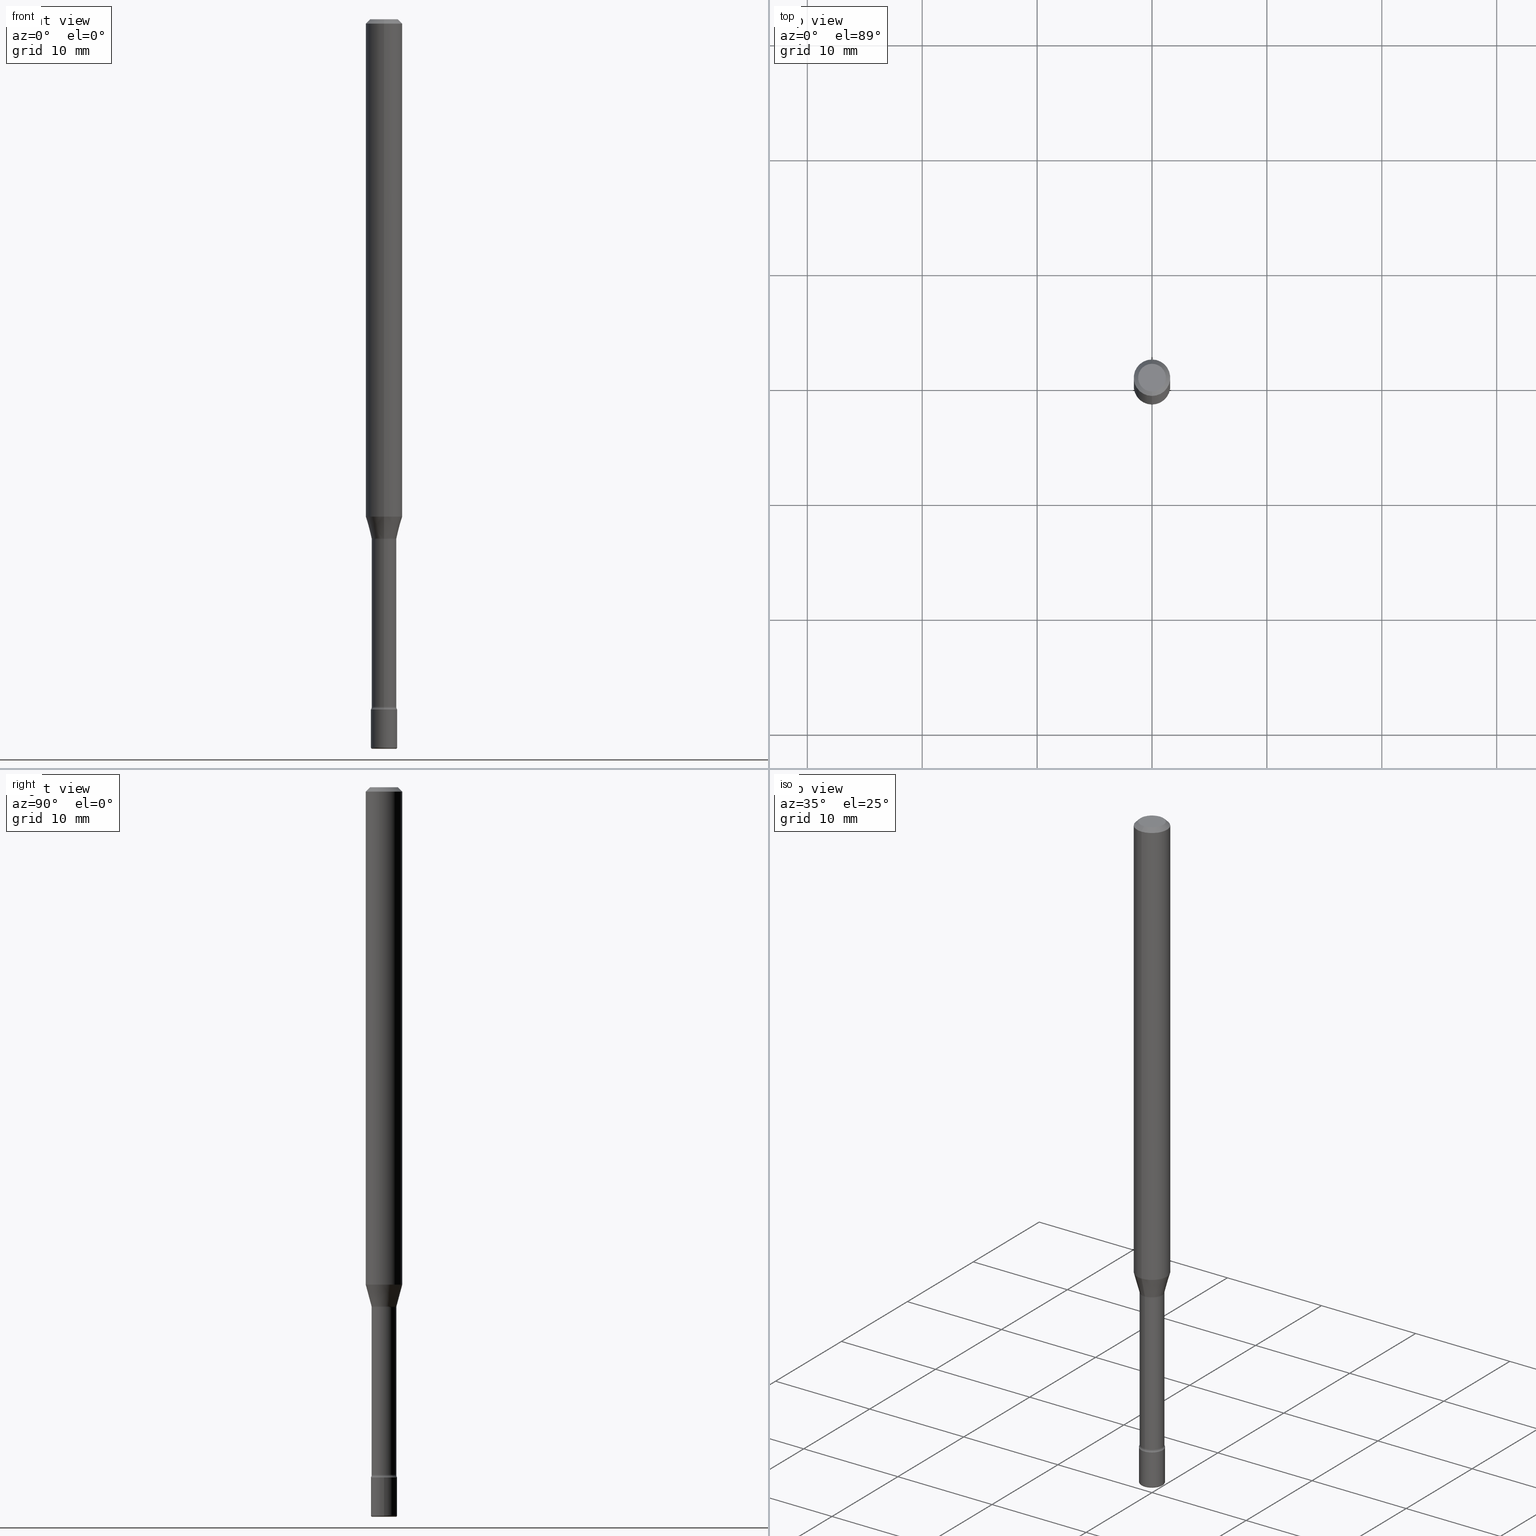
[diagram: canonical four-view strip — front | top / right | iso, engineering-drawing reading convention]
A machine part, canonical four-view strip (front | top / right | iso — engineering-drawing reading convention). The complete STEP part file that produces these views, byte-faithful:
ISO-10303-21;
HEADER;
FILE_DESCRIPTION (( 'STEP AP203' ),
    '1' );
FILE_NAME ('08849.STEP',
    '2024-03-06T20:05:38',
    ( '' ),
    ( '' ),
    'SwSTEP 2.0',
    'SolidWorks 2023',
    '' );
FILE_SCHEMA (( 'CONFIG_CONTROL_DESIGN' ));
ENDSEC;

DATA;
#1 = DIRECTION ( 'NONE',  ( -6.982962677686266711E-15, -1.000000000000000000, 3.491562882129241049E-15 ) ) ;
#2 = ORIENTED_EDGE ( 'NONE', *, *, #366, .T. ) ;
#3 = PLANE ( 'NONE',  #228 ) ;
#4 = ORIENTED_EDGE ( 'NONE', *, *, #376, .F. ) ;
#5 = CARTESIAN_POINT ( 'NONE',  ( 4.357763756151139053E-29, -6.221731716718877342E-15, -1.781974787463811216 ) ) ;
#6 = DIRECTION ( 'NONE',  ( -2.445411864812793917E-29, 3.491562882129241838E-15, 1.000000000000000000 ) ) ;
#7 = AXIS2_PLACEMENT_3D ( 'NONE', #543, #314, #186 ) ;
#8 = CARTESIAN_POINT ( 'NONE',  ( 4.364351673553919652E-16, 0.06249999999999995143, -0.01500000000000024578 ) ) ;
#9 = ORIENTED_EDGE ( 'NONE', *, *, #33, .F. ) ;
#10 = ADVANCED_FACE ( 'NONE', ( #183 ), #309, .F. ) ;
#11 = CARTESIAN_POINT ( 'NONE',  ( 5.783533726627847872E-29, -8.257353366364040046E-15, -2.365000000000000213 ) ) ;
#12 = CARTESIAN_POINT ( 'NONE',  ( 4.168479812603529288E-29, -5.951761990696706903E-15, -1.704612573687108945 ) ) ;
#13 = DIRECTION ( 'NONE',  ( 2.445411864812793917E-29, -3.491562882129241838E-15, -1.000000000000000000 ) ) ;
#14 = DIRECTION ( 'NONE',  ( -2.445411864812793917E-29, 3.491562882129241838E-15, 1.000000000000000000 ) ) ;
#15 = EDGE_CURVE ( 'NONE', #215, #368, #453, .T. ) ;
#16 = AXIS2_PLACEMENT_3D ( 'NONE', #35, #116, #384 ) ;
#17 = AXIS2_PLACEMENT_3D ( 'NONE', #130, #395, #134 ) ;
#18 = DATE_AND_TIME ( #383, #402 ) ;
#19 = DIRECTION ( 'NONE',  ( 1.000000000000000000, -6.982962677686266711E-15, 4.876176775795935793E-29 ) ) ;
#20 = CARTESIAN_POINT ( 'NONE',  ( -1.169113584055446105E-44, 1.669184350826100908E-30, 4.780733988912460139E-16 ) ) ;
#21 = DIRECTION ( 'NONE',  ( 1.000000000000000000, -7.105427357601001070E-15, 4.926316507159325352E-29 ) ) ;
#22 = ORIENTED_EDGE ( 'NONE', *, *, #510, .F. ) ;
#23 = AXIS2_PLACEMENT_3D ( 'NONE', #340, #428, #211 ) ;
#24 = APPROVAL_ROLE ( '' ) ;
#25 = DIRECTION ( 'NONE',  ( -2.445411864812793917E-29, 3.491562882129241838E-15, 1.000000000000000000 ) ) ;
#26 = UNCERTAINTY_MEASURE_WITH_UNIT (LENGTH_MEASURE( 1.000000000000000082E-05 ), #152, 'distance_accuracy_value', 'NONE');
#27 = CARTESIAN_POINT ( 'NONE',  ( 0.04000000000000000083, -9.008021854215313402E-15, -2.499999999999999556 ) ) ;
#28 = DIRECTION ( 'NONE',  ( -2.445411864812793917E-29, 3.491562882129241838E-15, 1.000000000000000000 ) ) ;
#29 = CIRCLE ( 'NONE', #360, 0.01500000000000001853 ) ;
#30 = CARTESIAN_POINT ( 'NONE',  ( -2.989484015155321567E-16, -0.04281111260567019294, -1.778092501787273072 ) ) ;
#31 = AXIS2_PLACEMENT_3D ( 'NONE', #437, #398, #405 ) ;
#32 = ORIENTED_EDGE ( 'NONE', *, *, #406, .T. ) ;
#33 = EDGE_CURVE ( 'NONE', #393, #424, #68, .T. ) ;
#34 = PERSON_AND_ORGANIZATION_ROLE ( 'design_owner' ) ;
#35 = CARTESIAN_POINT ( 'NONE',  ( 4.348168500605261643E-29, -6.208321780232765587E-15, -1.778092501787273294 ) ) ;
#36 = ADVANCED_FACE ( 'NONE', ( #89 ), #236, .T. ) ;
#37 = EDGE_LOOP ( 'NONE', ( #418, #264, #296, #43 ) ) ;
#38 = EDGE_CURVE ( 'NONE', #386, #79, #473, .T. ) ;
#39 = DIRECTION ( 'NONE',  ( -2.445468806185136597E-29, 3.491481338843145583E-15, 1.000000000000000000 ) ) ;
#40 = ORIENTED_EDGE ( 'NONE', *, *, #376, .T. ) ;
#41 = FACE_OUTER_BOUND ( 'NONE', #331, .T. ) ;
#42 = CIRCLE ( 'NONE', #246, 0.01500000000000003587 ) ;
#43 = ORIENTED_EDGE ( 'NONE', *, *, #558, .F. ) ;
#44 = FACE_OUTER_BOUND ( 'NONE', #255, .T. ) ;
#45 = EDGE_LOOP ( 'NONE', ( #125, #258, #187, #399 ) ) ;
#46 = FACE_OUTER_BOUND ( 'NONE', #520, .T. ) ;
#47 = APPROVAL ( #146, 'UNSPECIFIED' ) ;
#48 = CARTESIAN_POINT ( 'NONE',  ( 5.783533726627847872E-29, -8.257353366364040046E-15, -2.365000000000000213 ) ) ;
#49 = DIRECTION ( 'NONE',  ( -2.445411864812793917E-29, 3.491562882129241838E-15, 1.000000000000000000 ) ) ;
#50 = CARTESIAN_POINT ( 'NONE',  ( 5.762538269587286723E-29, -8.227377418082795508E-15, -2.356414547187247521 ) ) ;
#51 = TOROIDAL_SURFACE ( 'NONE', #445, 0.05730000000000001065, 0.01500000000000003240 ) ;
#52 = DIRECTION ( 'NONE',  ( -6.982962677686265922E-15, -1.000000000000000000, 4.370956789862821150E-15 ) ) ;
#53 = DIRECTION ( 'NONE',  ( 1.839019923739595977E-15, 0.2588190451025243477, 0.9659258262890673130 ) ) ;
#54 = FACE_OUTER_BOUND ( 'NONE', #229, .T. ) ;
#55 = ORIENTED_EDGE ( 'NONE', *, *, #15, .T. ) ;
#56 = APPLICATION_PROTOCOL_DEFINITION ( 'international standard', 'config_control_design', 1994, #442 ) ;
#57 = ORIENTED_EDGE ( 'NONE', *, *, #87, .T. ) ;
#58 = AXIS2_PLACEMENT_3D ( 'NONE', #420, #78, #528 ) ;
#59 = EDGE_CURVE ( 'NONE', #79, #386, #288, .T. ) ;
#60 = PERSON_AND_ORGANIZATION ( #459, #311 ) ;
#61 = CARTESIAN_POINT ( 'NONE',  ( 3.005595772265800451E-16, 0.04229999999999378701, -1.781974787463811438 ) ) ;
#62 = ORIENTED_EDGE ( 'NONE', *, *, #366, .F. ) ;
#63 = DATE_AND_TIME ( #242, #426 ) ;
#64 = DIRECTION ( 'NONE',  ( -6.982962677686263555E-15, -1.000000000000000000, 0.000000000000000000 ) ) ;
#65 = DESIGN_CONTEXT ( 'detailed design', #505, 'design' ) ;
#66 = APPROVAL_DATE_TIME ( #63, #450 ) ;
#67 = DIRECTION ( 'NONE',  ( -2.445411864812793917E-29, 3.491562882129241838E-15, 1.000000000000000000 ) ) ;
#68 = CIRCLE ( 'NONE', #176, 0.04229999999999999732 ) ;
#69 = CIRCLE ( 'NONE', #318, 0.04500000000000000527 ) ;
#70 = CARTESIAN_POINT ( 'NONE',  ( -0.04000000000000000083, -8.427028846109608002E-15, -2.495000000000000107 ) ) ;
#71 = CC_DESIGN_PERSON_AND_ORGANIZATION_ASSIGNMENT ( #150, #457, ( #168 ) ) ;
#72 = CARTESIAN_POINT ( 'NONE',  ( -2.953793212660855675E-16, -0.04230000000000623539, -1.781974787463810994 ) ) ;
#73 = CYLINDRICAL_SURFACE ( 'NONE', #570, 0.04229999999999999732 ) ;
#74 = ORIENTED_EDGE ( 'NONE', *, *, #507, .F. ) ;
#75 = APPROVAL_STATUS ( 'not_yet_approved' ) ;
#76 = AXIS2_PLACEMENT_3D ( 'NONE', #512, #108, #192 ) ;
#77 = VECTOR ( 'NONE', #322, 39.37007874015748143 ) ;
#78 = DIRECTION ( 'NONE',  ( 2.445411864812793637E-29, -3.491562882129241838E-15, -1.000000000000000000 ) ) ;
#79 = VERTEX_POINT ( 'NONE', #137 ) ;
#80 = DIRECTION ( 'NONE',  ( -1.000000000000000000, 6.982962677686265922E-15, -4.883557194083112340E-29 ) ) ;
#81 = ORIENTED_EDGE ( 'NONE', *, *, #454, .T. ) ;
#82 = DIRECTION ( 'NONE',  ( -2.445468806185136597E-29, 3.491481338843145583E-15, 1.000000000000000000 ) ) ;
#83 = ORIENTED_EDGE ( 'NONE', *, *, #524, .T. ) ;
#84 = DIRECTION ( 'NONE',  ( -2.445468806185136877E-29, 3.491481338843145188E-15, 1.000000000000000000 ) ) ;
#85 = VECTOR ( 'NONE', #563, 39.37007874015748143 ) ;
#86 = ORIENTED_EDGE ( 'NONE', *, *, #109, .F. ) ;
#87 = EDGE_CURVE ( 'NONE', #117, #304, #495, .T. ) ;
#88 = CARTESIAN_POINT ( 'NONE',  ( 4.168479812603529288E-29, -5.951761990696706903E-15, -1.704612573687108945 ) ) ;
#89 = FACE_OUTER_BOUND ( 'NONE', #209, .T. ) ;
#90 = EDGE_LOOP ( 'NONE', ( #540, #180, #260, #397 ) ) ;
#91 = EDGE_CURVE ( 'NONE', #215, #304, #103, .T. ) ;
#92 = EDGE_CURVE ( 'NONE', #204, #224, #118, .T. ) ;
#93 = CARTESIAN_POINT ( 'NONE',  ( 4.357662288061261093E-29, -6.221877024798788192E-15, -1.781974787463811216 ) ) ;
#94 = CIRCLE ( 'NONE', #434, 0.004999999999999776325 ) ;
#95 = VERTEX_POINT ( 'NONE', #545 ) ;
#96 = CIRCLE ( 'NONE', #141, 0.06250000000000000000 ) ;
#97 = CARTESIAN_POINT ( 'NONE',  ( 3.840629472727447874E-16, 0.04750000000000000749, -1.929345507921889422E-16 ) ) ;
#98 = DIRECTION ( 'NONE',  ( -2.445468806185136597E-29, 3.491481338843145583E-15, 1.000000000000000000 ) ) ;
#99 = PERSON_AND_ORGANIZATION ( #459, #311 ) ;
#100 = ORIENTED_EDGE ( 'NONE', *, *, #558, .T. ) ;
#101 = COORDINATED_UNIVERSAL_TIME_OFFSET ( 5, 0, .BEHIND. ) ;
#102 = DIRECTION ( 'NONE',  ( -6.982962677686265922E-15, -1.000000000000000000, 3.483106191921935554E-15 ) ) ;
#103 = CIRCLE ( 'NONE', #271, 0.06250000000000000000 ) ;
#104 = AXIS2_PLACEMENT_3D ( 'NONE', #498, #21, #335 ) ;
#105 = VECTOR ( 'NONE', #303, 39.37007874015748854 ) ;
#106 = LOCAL_TIME ( 15, 5, 38.00000000000000000, #191 ) ;
#107 = FACE_OUTER_BOUND ( 'NONE', #37, .T. ) ;
#108 = DIRECTION ( 'NONE',  ( -2.445411864812793917E-29, 3.491562882129241838E-15, 1.000000000000000000 ) ) ;
#109 = EDGE_CURVE ( 'NONE', #173, #175, #129, .T. ) ;
#110 = DATE_AND_TIME ( #511, #262 ) ;
#111 = DIRECTION ( 'NONE',  ( -2.445468806185136597E-29, 3.491481338843145583E-15, 1.000000000000000000 ) ) ;
#112 = VECTOR ( 'NONE', #84, 39.37007874015748143 ) ;
#113 = DIRECTION ( 'NONE',  ( 1.000000000000000000, -6.982962677686259611E-15, 4.883557194083110659E-29 ) ) ;
#114 = FACE_OUTER_BOUND ( 'NONE', #483, .T. ) ;
#115 = ORIENTED_EDGE ( 'NONE', *, *, #206, .F. ) ;
#116 = DIRECTION ( 'NONE',  ( -2.445411864812793917E-29, 3.491562882129241838E-15, 1.000000000000000000 ) ) ;
#117 = VERTEX_POINT ( 'NONE', #280 ) ;
#118 = CIRCLE ( 'NONE', #217, 0.04000000000000000083 ) ;
#119 = AXIS2_PLACEMENT_3D ( 'NONE', #569, #203, #380 ) ;
#120 = APPROVAL_PERSON_ORGANIZATION ( #464, #396, #413 ) ;
#121 = CARTESIAN_POINT ( 'NONE',  ( -2.989484015155321567E-16, -0.04281111260567019294, -1.778092501787273072 ) ) ;
#122 = EDGE_CURVE ( 'NONE', #375, #368, #547, .T. ) ;
#123 = EDGE_LOOP ( 'NONE', ( #302, #128, #355, #471 ) ) ;
#124 = CARTESIAN_POINT ( 'NONE',  ( 4.440892098501044258E-16, 0.06249999999999408112, -1.704612573687109167 ) ) ;
#125 = ORIENTED_EDGE ( 'NONE', *, *, #91, .T. ) ;
#126 = ADVANCED_FACE ( 'NONE', ( #367 ), #414, .T. ) ;
#127 = DIRECTION ( 'NONE',  ( -6.982962677686265133E-15, -1.000000000000000000, 3.491562882129241838E-15 ) ) ;
#128 = ORIENTED_EDGE ( 'NONE', *, *, #196, .T. ) ;
#129 = CIRCLE ( 'NONE', #541, 0.04499999999999999833 ) ;
#130 = CARTESIAN_POINT ( 'NONE',  ( -1.169113584055446105E-44, 1.669184350826100908E-30, 4.780733988912460139E-16 ) ) ;
#131 = AXIS2_PLACEMENT_3D ( 'NONE', #509, #67, #245 ) ;
#132 = DIRECTION ( 'NONE',  ( -6.982962677686266711E-15, -1.000000000000000000, 6.458269488567998169E-15 ) ) ;
#133 = AXIS2_PLACEMENT_3D ( 'NONE', #93, #263, #231 ) ;
#134 = DIRECTION ( 'NONE',  ( -6.982962677686265922E-15, -1.000000000000000000, 3.491562882129242627E-15 ) ) ;
#135 = EDGE_LOOP ( 'NONE', ( #526, #341, #222, #202 ) ) ;
#136 = DIRECTION ( 'NONE',  ( -6.982962677686265922E-15, -1.000000000000000000, 3.491562882129241838E-15 ) ) ;
#137 = CARTESIAN_POINT ( 'NONE',  ( 0.04499999999999999833, -8.571586686859921733E-15, -2.365000000000000213 ) ) ;
#138 = MANIFOLD_SOLID_BREP ( 'Body-Move/Copy2[1]', #560 ) ;
#139 = CARTESIAN_POINT ( 'NONE',  ( -2.953793212661290535E-16, -0.04229999999999999732, 6.257665088053130012E-16 ) ) ;
#140 = ORIENTED_EDGE ( 'NONE', *, *, #109, .T. ) ;
#141 = AXIS2_PLACEMENT_3D ( 'NONE', #275, #182, #449 ) ;
#142 = FACE_OUTER_BOUND ( 'NONE', #213, .T. ) ;
#143 = CARTESIAN_POINT ( 'NONE',  ( 5.783399060282257641E-29, -8.257546216235657656E-15, -2.365000000000000213 ) ) ;
#144 = PERSON_AND_ORGANIZATION_ROLE ( 'design_supplier' ) ;
#145 = CARTESIAN_POINT ( 'NONE',  ( 5.783399060282257641E-29, -8.257546216235657656E-15, -2.365000000000000213 ) ) ;
#146 = APPROVAL_STATUS ( 'not_yet_approved' ) ;
#147 = AXIS2_PLACEMENT_3D ( 'NONE', #50, #6, #409 ) ;
#148 = ORIENTED_EDGE ( 'NONE', *, *, #356, .F. ) ;
#149 = CIRCLE ( 'NONE', #423, 0.04499999999999999833 ) ;
#150 = PERSON_AND_ORGANIZATION ( #459, #311 ) ;
#151 = CARTESIAN_POINT ( 'NONE',  ( 0.000000000000000000, 0.000000000000000000, 0.000000000000000000 ) ) ;
#152 =( CONVERSION_BASED_UNIT ( 'INCH', #277 ) LENGTH_UNIT ( ) NAMED_UNIT ( #269 ) );
#153 = DIRECTION ( 'NONE',  ( -1.000000000000000000, 6.982962677686265922E-15, -4.883557194083112340E-29 ) ) ;
#154 = ORIENTED_EDGE ( 'NONE', *, *, #38, .T. ) ;
#155 = EDGE_CURVE ( 'NONE', #393, #173, #455, .T. ) ;
#156 = CARTESIAN_POINT ( 'NONE',  ( 6.620752579593885833E-46, -9.460906030875025688E-32, -2.708531389104991304E-17 ) ) ;
#157 = CIRCLE ( 'NONE', #475, 0.04230000000000001120 ) ;
#158 = CC_DESIGN_PERSON_AND_ORGANIZATION_ASSIGNMENT ( #99, #34, ( #212 ) ) ;
#159 = CARTESIAN_POINT ( 'NONE',  ( -0.04499999999999999833, -8.164555422296798820E-15, -2.365000000000000213 ) ) ;
#160 = ORIENTED_EDGE ( 'NONE', *, *, #91, .F. ) ;
#161 = DIRECTION ( 'NONE',  ( -2.445411864812793917E-29, 3.491562882129241838E-15, 1.000000000000000000 ) ) ;
#162 = ORIENTED_EDGE ( 'NONE', *, *, #170, .F. ) ;
#163 = DIRECTION ( 'NONE',  ( 0.000000000000000000, 0.000000000000000000, 1.000000000000000000 ) ) ;
#164 = LINE ( 'NONE', #348, #379 ) ;
#165 = ORIENTED_EDGE ( 'NONE', *, *, #507, .T. ) ;
#166 = DATE_AND_TIME ( #332, #106 ) ;
#167 = CIRCLE ( 'NONE', #491, 0.04750000000000000749 ) ;
#168 = PRODUCT_DEFINITION_FORMATION_WITH_SPECIFIED_SOURCE ( 'ANY', '', #212, .NOT_KNOWN. ) ;
#169 = DIRECTION ( 'NONE',  ( -2.445411864812793917E-29, 3.491562882129241838E-15, 1.000000000000000000 ) ) ;
#170 = EDGE_CURVE ( 'NONE', #224, #478, #94, .T. ) ;
#171 = ORIENTED_EDGE ( 'NONE', *, *, #122, .T. ) ;
#172 = CYLINDRICAL_SURFACE ( 'NONE', #425, 0.04499999999999999833 ) ;
#173 = VERTEX_POINT ( 'NONE', #555 ) ;
#174 = DIRECTION ( 'NONE',  ( -2.445468806185136597E-29, 3.491481338843145583E-15, 1.000000000000000000 ) ) ;
#175 = VERTEX_POINT ( 'NONE', #287 ) ;
#176 = AXIS2_PLACEMENT_3D ( 'NONE', #351, #533, #132 ) ;
#177 = CONICAL_SURFACE ( 'NONE', #542, 0.04281111260566398957, 0.2617993877991496299 ) ;
#178 = LINE ( 'NONE', #139, #218 ) ;
#179 = CIRCLE ( 'NONE', #328, 0.06250000000000000000 ) ;
#180 = ORIENTED_EDGE ( 'NONE', *, *, #381, .F. ) ;
#181 = AXIS2_PLACEMENT_3D ( 'NONE', #11, #184, #221 ) ;
#182 = DIRECTION ( 'NONE',  ( -2.445411864812793917E-29, 3.491562882129241838E-15, 1.000000000000000000 ) ) ;
#183 = FACE_OUTER_BOUND ( 'NONE', #266, .T. ) ;
#184 = DIRECTION ( 'NONE',  ( -2.438088387897960049E-29, 3.491481338843145188E-15, 1.000000000000000000 ) ) ;
#185 = CARTESIAN_POINT ( 'NONE',  ( 3.041912507176654596E-16, 0.04281111260565777926, -1.778092501787273516 ) ) ;
#186 = DIRECTION ( 'NONE',  ( -6.982962677686265922E-15, -1.000000000000000000, 3.491562882129241838E-15 ) ) ;
#187 = ORIENTED_EDGE ( 'NONE', *, *, #441, .F. ) ;
#188 = FACE_OUTER_BOUND ( 'NONE', #564, .T. ) ;
#189 = DIRECTION ( 'NONE',  ( -4.851104656540962697E-15, -0.7071067811865497932, -0.7071067811865452413 ) ) ;
#190 = ADVANCED_FACE ( 'NONE', ( #549 ), #251, .T. ) ;
#191 = COORDINATED_UNIVERSAL_TIME_OFFSET ( 5, 0, .BEHIND. ) ;
#192 = DIRECTION ( 'NONE',  ( -6.982962677686265133E-15, -1.000000000000000000, 6.381165607227957288E-15 ) ) ;
#193 = AXIS2_PLACEMENT_3D ( 'NONE', #20, #199, #421 ) ;
#194 = VERTEX_POINT ( 'NONE', #72 ) ;
#195 = CIRCLE ( 'NONE', #272, 0.04500000000000000527 ) ;
#196 = EDGE_CURVE ( 'NONE', #117, #234, #500, .T. ) ;
#197 = APPROVAL_PERSON_ORGANIZATION ( #198, #450, #24 ) ;
#198 = PERSON_AND_ORGANIZATION ( #459, #311 ) ;
#199 = DIRECTION ( 'NONE',  ( -2.445411864812793917E-29, 3.491562882129241838E-15, 1.000000000000000000 ) ) ;
#200 = ADVANCED_FACE ( 'NONE', ( #107 ), #466, .T. ) ;
#201 = CARTESIAN_POINT ( 'NONE',  ( 6.101444671431915719E-29, -8.711245940413648329E-15, -2.495000000000000107 ) ) ;
#202 = ORIENTED_EDGE ( 'NONE', *, *, #373, .F. ) ;
#203 = DIRECTION ( 'NONE',  ( -2.445411864812793917E-29, 3.491562882129241838E-15, 1.000000000000000000 ) ) ;
#204 = VERTEX_POINT ( 'NONE', #27 ) ;
#205 = CIRCLE ( 'NONE', #435, 0.04750000000000000749 ) ;
#206 = EDGE_CURVE ( 'NONE', #175, #173, #149, .T. ) ;
#207 = CC_DESIGN_APPROVAL ( #450, ( #297 ) ) ;
#208 = CARTESIAN_POINT ( 'NONE',  ( 4.348168500605261643E-29, -6.208321780232765587E-15, -1.778092501787273294 ) ) ;
#209 = EDGE_LOOP ( 'NONE', ( #162, #2, #100, #232 ) ) ;
#210 = COORDINATED_UNIVERSAL_TIME_OFFSET ( 5, 0, .BEHIND. ) ;
#211 = DIRECTION ( 'NONE',  ( 6.982962677686265922E-15, 1.000000000000000000, -3.483106191921935554E-15 ) ) ;
#212 = PRODUCT ( '08849', '08849', '', ( #326 ) ) ;
#213 = EDGE_LOOP ( 'NONE', ( #571, #4, #359, #518 ) ) ;
#214 = CARTESIAN_POINT ( 'NONE',  ( 4.357763756151139053E-29, -6.221731716718877342E-15, -1.781974787463811216 ) ) ;
#215 = VERTEX_POINT ( 'NONE', #292 ) ;
#216 = EDGE_CURVE ( 'NONE', #95, #368, #345, .T. ) ;
#217 = AXIS2_PLACEMENT_3D ( 'NONE', #493, #98, #451 ) ;
#218 = VECTOR ( 'NONE', #49, 39.37007874015748143 ) ;
#219 = LINE ( 'NONE', #392, #85 ) ;
#220 = ORIENTED_EDGE ( 'NONE', *, *, #441, .T. ) ;
#221 = DIRECTION ( 'NONE',  ( 1.000000000000000000, -6.982962677686265922E-15, 4.876176775795935793E-29 ) ) ;
#222 = ORIENTED_EDGE ( 'NONE', *, *, #59, .F. ) ;
#223 = CYLINDRICAL_SURFACE ( 'NONE', #17, 0.06250000000000000000 ) ;
#224 = VERTEX_POINT ( 'NONE', #557 ) ;
#225 = AXIS2_PLACEMENT_3D ( 'NONE', #412, #536, #448 ) ;
#226 = EDGE_CURVE ( 'NONE', #375, #438, #205, .T. ) ;
#227 = CARTESIAN_POINT ( 'NONE',  ( -0.04499999999999989425, -8.391501709321603750E-15, -2.495000000000000107 ) ) ;
#228 = AXIS2_PLACEMENT_3D ( 'NONE', #484, #354, #439 ) ;
#229 = EDGE_LOOP ( 'NONE', ( #115, #86 ) ) ;
#230 = EDGE_CURVE ( 'NONE', #424, #175, #29, .T. ) ;
#231 = DIRECTION ( 'NONE',  ( -6.982962677686265133E-15, -1.000000000000000000, 6.458269488567996591E-15 ) ) ;
#232 = ORIENTED_EDGE ( 'NONE', *, *, #524, .F. ) ;
#233 = CARTESIAN_POINT ( 'NONE',  ( 4.348168500605261643E-29, -6.208321780232765587E-15, -1.778092501787273294 ) ) ;
#234 = VERTEX_POINT ( 'NONE', #61 ) ;
#235 = CALENDAR_DATE ( 2024, 6, 3 ) ;
#236 = TOROIDAL_SURFACE ( 'NONE', #225, 0.04000000000000000083, 0.004999999999999771988 ) ;
#237 = EDGE_LOOP ( 'NONE', ( #487, #171, #220, #550 ) ) ;
#238 = CIRCLE ( 'NONE', #525, 0.04000000000000000083 ) ;
#239 = DIRECTION ( 'NONE',  ( -6.982962677686265133E-15, -1.000000000000000000, 6.458269488567996591E-15 ) ) ;
#240 = EDGE_CURVE ( 'NONE', #194, #234, #157, .T. ) ;
#241 = ADVANCED_FACE ( 'NONE', ( #188 ), #469, .T. ) ;
#242 = CALENDAR_DATE ( 2024, 6, 3 ) ;
#243 = CARTESIAN_POINT ( 'NONE',  ( -4.287811248607203282E-16, -0.06250000000000005551, -0.01499999999999981036 ) ) ;
#244 = SECURITY_CLASSIFICATION_LEVEL ( 'unclassified' ) ;
#245 = DIRECTION ( 'NONE',  ( -6.982962677686265922E-15, -1.000000000000000000, 3.491562882129242627E-15 ) ) ;
#246 = AXIS2_PLACEMENT_3D ( 'NONE', #477, #80, #257 ) ;
#247 = DIRECTION ( 'NONE',  ( -2.445411864812793917E-29, 3.491562882129241838E-15, 1.000000000000000000 ) ) ;
#248 = DIRECTION ( 'NONE',  ( -6.982962677686265133E-15, -1.000000000000000000, 3.491562882129241838E-15 ) ) ;
#249 = CARTESIAN_POINT ( 'NONE',  ( 6.620752579593885833E-46, -9.460906030875025688E-32, -2.708531389104991304E-17 ) ) ;
#250 = ORIENTED_EDGE ( 'NONE', *, *, #494, .F. ) ;
#251 = CONICAL_SURFACE ( 'NONE', #76, 0.04281111260566398957, 0.2617993877991496299 ) ;
#252 = CIRCLE ( 'NONE', #501, 0.04281111260566398957 ) ;
#253 = PERSON_AND_ORGANIZATION ( #459, #311 ) ;
#254 = DIRECTION ( 'NONE',  ( -6.982962677686265922E-15, -1.000000000000000000, 3.491562882129241838E-15 ) ) ;
#255 = EDGE_LOOP ( 'NONE', ( #485, #154 ) ) ;
#256 = ADVANCED_FACE ( 'NONE', ( #465 ), #333, .T. ) ;
#257 = DIRECTION ( 'NONE',  ( -6.982962677686263555E-15, -1.000000000000000000, 0.000000000000000000 ) ) ;
#258 = ORIENTED_EDGE ( 'NONE', *, *, #510, .T. ) ;
#259 = DIRECTION ( 'NONE',  ( 1.000000000000000000, -6.982962677686266711E-15, 4.876176775795935793E-29 ) ) ;
#260 = ORIENTED_EDGE ( 'NONE', *, *, #230, .T. ) ;
#261 = CIRCLE ( 'NONE', #16, 0.04281111260566398957 ) ;
#262 = LOCAL_TIME ( 15, 5, 38.00000000000000000, #546 ) ;
#263 = DIRECTION ( 'NONE',  ( -2.445411864812793917E-29, 3.491562882129241838E-15, 1.000000000000000000 ) ) ;
#264 = ORIENTED_EDGE ( 'NONE', *, *, #170, .T. ) ;
#265 = DIRECTION ( 'NONE',  ( -2.445411864812793917E-29, 3.491562882129241838E-15, 1.000000000000000000 ) ) ;
#266 = EDGE_LOOP ( 'NONE', ( #9, #349, #140, #529 ) ) ;
#267 = DIRECTION ( 'NONE',  ( 1.000000000000000000, -6.982962677686267499E-15, 0.000000000000000000 ) ) ;
#268 = PRODUCT_RELATED_PRODUCT_CATEGORY ( 'detail', '', ( #212 ) ) ;
#269 = DIMENSIONAL_EXPONENTS ( 1.000000000000000000, 0.000000000000000000, 0.000000000000000000, 0.000000000000000000, 0.000000000000000000, 0.000000000000000000, 0.000000000000000000 ) ;
#270 = CARTESIAN_POINT ( 'NONE',  ( 5.783533726627847872E-29, -8.257353366364040046E-15, -2.365000000000000213 ) ) ;
#271 = AXIS2_PLACEMENT_3D ( 'NONE', #12, #278, #321 ) ;
#272 = AXIS2_PLACEMENT_3D ( 'NONE', #532, #316, #488 ) ;
#273 = CARTESIAN_POINT ( 'NONE',  ( 3.668117797219197392E-31, -5.237344323193873357E-17, -0.01500000000000002720 ) ) ;
#274 = ORIENTED_EDGE ( 'NONE', *, *, #381, .T. ) ;
#275 = CARTESIAN_POINT ( 'NONE',  ( 3.668117797219197392E-31, -5.237344323193873357E-17, -0.01500000000000002720 ) ) ;
#276 = CC_DESIGN_DATE_AND_TIME_ASSIGNMENT ( #365, #411, ( #297 ) ) ;
#277 = LENGTH_MEASURE_WITH_UNIT ( LENGTH_MEASURE( 0.02539999999999999897 ), #416 );
#278 = DIRECTION ( 'NONE',  ( -2.445411864812793917E-29, 3.491562882129241838E-15, 1.000000000000000000 ) ) ;
#279 = DATE_TIME_ROLE ( 'classification_date' ) ;
#280 = CARTESIAN_POINT ( 'NONE',  ( 3.741402302838848194E-16, 0.04281111260565777926, -1.778092501787273516 ) ) ;
#281 = CONICAL_SURFACE ( 'NONE', #352, 0.06250000000000000000, 0.7853981633974480570 ) ;
#282 = CC_DESIGN_APPROVAL ( #396, ( #168 ) ) ;
#283 = DIRECTION ( 'NONE',  ( -2.445411864812793917E-29, 3.491562882129241838E-15, 1.000000000000000000 ) ) ;
#284 = PERSON_AND_ORGANIZATION_ROLE ( 'creator' ) ;
#285 = CARTESIAN_POINT ( 'NONE',  ( -4.001237614313655264E-16, -0.05730000000000824711, -2.356414547187247077 ) ) ;
#286 = PERSON_AND_ORGANIZATION ( #459, #311 ) ;
#287 = CARTESIAN_POINT ( 'NONE',  ( -3.142333204958241982E-16, -0.04500000000000827644, -2.364999999999999769 ) ) ;
#288 = CIRCLE ( 'NONE', #370, 0.04499999999999999833 ) ;
#289 = ORIENTED_EDGE ( 'NONE', *, *, #305, .F. ) ;
#290 = TOROIDAL_SURFACE ( 'NONE', #310, 0.05730000000000001065, 0.01500000000000003240 ) ;
#291 = ADVANCED_FACE ( 'NONE', ( #336 ), #364, .F. ) ;
#292 = CARTESIAN_POINT ( 'NONE',  ( -4.364351673553497119E-16, -0.06250000000000591194, -1.704612573687108723 ) ) ;
#293 = ADVANCED_FACE ( 'NONE', ( #346 ), #172, .T. ) ;
#294 = VERTEX_POINT ( 'NONE', #30 ) ;
#295 = DIRECTION ( 'NONE',  ( -2.445411864812793917E-29, 3.491562882129241838E-15, 1.000000000000000000 ) ) ;
#296 = ORIENTED_EDGE ( 'NONE', *, *, #472, .F. ) ;
#297 = PRODUCT_DEFINITION ( 'UNKNOWN', '', #168, #65 ) ;
#298 = AXIS2_PLACEMENT_3D ( 'NONE', #307, #422, #523 ) ;
#299 = SHAPE_DEFINITION_REPRESENTATION ( #334, #387 ) ;
#300 = ADVANCED_FACE ( 'NONE', ( #470 ), #177, .T. ) ;
#301 = LINE ( 'NONE', #482, #112 ) ;
#302 = ORIENTED_EDGE ( 'NONE', *, *, #454, .F. ) ;
#303 = DIRECTION ( 'NONE',  ( -1.807323732225325801E-15, -0.2588190451025175753, 0.9659258262890690894 ) ) ;
#304 = VERTEX_POINT ( 'NONE', #124 ) ;
#305 = EDGE_CURVE ( 'NONE', #294, #117, #261, .T. ) ;
#306 = ADVANCED_FACE ( 'NONE', ( #41 ), #73, .T. ) ;
#307 = CARTESIAN_POINT ( 'NONE',  ( 5.762404092109162712E-29, -8.227569567868378496E-15, -2.356414547187247521 ) ) ;
#308 = ORIENTED_EDGE ( 'NONE', *, *, #324, .T. ) ;
#309 = TOROIDAL_SURFACE ( 'NONE', #147, 0.05730000000000001759, 0.01500000000000001506 ) ;
#310 = AXIS2_PLACEMENT_3D ( 'NONE', #214, #295, #254 ) ;
#311 = ORGANIZATION ( 'UNSPECIFIED', 'UNSPECIFIED', '' ) ;
#312 = PLANE ( 'NONE',  #181 ) ;
#313 = DIRECTION ( 'NONE',  ( -2.445468806185136597E-29, 3.491481338843145583E-15, 1.000000000000000000 ) ) ;
#314 = DIRECTION ( 'NONE',  ( -2.445411864812793637E-29, 3.491562882129241838E-15, 1.000000000000000000 ) ) ;
#315 = ORIENTED_EDGE ( 'NONE', *, *, #33, .T. ) ;
#316 = DIRECTION ( 'NONE',  ( -2.445468806185136597E-29, 3.491481338843145583E-15, 1.000000000000000000 ) ) ;
#317 = DIRECTION ( 'NONE',  ( 1.000000000000000000, -6.982962677686269077E-15, 0.000000000000000000 ) ) ;
#318 = AXIS2_PLACEMENT_3D ( 'NONE', #408, #174, #267 ) ;
#319 = ADVANCED_FACE ( 'NONE', ( #114 ), #290, .F. ) ;
#320 = PLANE ( 'NONE',  #7 ) ;
#321 = DIRECTION ( 'NONE',  ( -6.982962677686265922E-15, -1.000000000000000000, 4.370956789862821150E-15 ) ) ;
#322 = DIRECTION ( 'NONE',  ( -2.445411864812793917E-29, 3.491562882129241838E-15, 1.000000000000000000 ) ) ;
#323 = DIRECTION ( 'NONE',  ( 1.000000000000000000, -6.982962677686269077E-15, 0.000000000000000000 ) ) ;
#324 = EDGE_CURVE ( 'NONE', #393, #234, #164, .T. ) ;
#325 = DIRECTION ( 'NONE',  ( -6.982962677686265133E-15, -1.000000000000000000, 6.070773319253918263E-15 ) ) ;
#326 = MECHANICAL_CONTEXT ( 'NONE', #442, 'mechanical' ) ;
#327 = VECTOR ( 'NONE', #14, 39.37007874015748143 ) ;
#328 = AXIS2_PLACEMENT_3D ( 'NONE', #88, #265, #52 ) ;
#329 = DIRECTION ( 'NONE',  ( -6.982962677686265133E-15, -1.000000000000000000, 6.070773319253918263E-15 ) ) ;
#330 = CIRCLE ( 'NONE', #31, 0.004999999999999776325 ) ;
#331 = EDGE_LOOP ( 'NONE', ( #274, #308, #513, #250 ) ) ;
#332 = CALENDAR_DATE ( 2024, 6, 3 ) ;
#333 = CYLINDRICAL_SURFACE ( 'NONE', #131, 0.06250000000000000000 ) ;
#334 = PRODUCT_DEFINITION_SHAPE ( 'NONE', 'NONE',  #297 ) ;
#335 = DIRECTION ( 'NONE',  ( 7.105427357600998703E-15, 1.000000000000000000, 0.000000000000000000 ) ) ;
#336 = FACE_OUTER_BOUND ( 'NONE', #382, .T. ) ;
#337 = TOROIDAL_SURFACE ( 'NONE', #119, 0.05730000000000001759, 0.01500000000000001506 ) ;
#338 = CARTESIAN_POINT ( 'NONE',  ( 3.101519041593414751E-16, 0.04229999999999176780, -2.356414547187247965 ) ) ;
#339 = ORIENTED_EDGE ( 'NONE', *, *, #305, .T. ) ;
#340 = CARTESIAN_POINT ( 'NONE',  ( 3.668117797219197392E-31, -5.237344323193873357E-17, -0.01500000000000002720 ) ) ;
#341 = ORIENTED_EDGE ( 'NONE', *, *, #385, .T. ) ;
#342 = CARTESIAN_POINT ( 'NONE',  ( 0.000000000000000000, 0.000000000000000000, 0.000000000000000000 ) ) ;
#343 = EDGE_LOOP ( 'NONE', ( #339, #57, #160, #148 ) ) ;
#344 = VECTOR ( 'NONE', #189, 39.37007874015748143 ) ;
#345 = CIRCLE ( 'NONE', #561, 0.06250000000000000000 ) ;
#346 = FACE_OUTER_BOUND ( 'NONE', #135, .T. ) ;
#347 = ORIENTED_EDGE ( 'NONE', *, *, #373, .T. ) ;
#348 = CARTESIAN_POINT ( 'NONE',  ( 3.005595772265223103E-16, 0.04229999999999999732, 3.303802889771791745E-16 ) ) ;
#349 = ORIENTED_EDGE ( 'NONE', *, *, #155, .T. ) ;
#350 = DIRECTION ( 'NONE',  ( -2.445411864812793917E-29, 3.491562882129241838E-15, 1.000000000000000000 ) ) ;
#351 = CARTESIAN_POINT ( 'NONE',  ( 5.762404092109162712E-29, -8.227569567868378496E-15, -2.356414547187247521 ) ) ;
#352 = AXIS2_PLACEMENT_3D ( 'NONE', #273, #13, #361 ) ;
#353 =( GEOMETRIC_REPRESENTATION_CONTEXT ( 3 ) GLOBAL_UNCERTAINTY_ASSIGNED_CONTEXT ( ( #26 ) ) GLOBAL_UNIT_ASSIGNED_CONTEXT ( ( #152, #565, #462 ) ) REPRESENTATION_CONTEXT ( 'NONE', 'WORKASPACE' ) );
#354 = DIRECTION ( 'NONE',  ( 2.438088387897960049E-29, -3.491481338843145188E-15, -1.000000000000000000 ) ) ;
#355 = ORIENTED_EDGE ( 'NONE', *, *, #553, .T. ) ;
#356 = EDGE_CURVE ( 'NONE', #294, #215, #432, .T. ) ;
#357 = LINE ( 'NONE', #8, #456 ) ;
#358 = ADVANCED_FACE ( 'NONE', ( #389 ), #337, .F. ) ;
#359 = ORIENTED_EDGE ( 'NONE', *, *, #427, .T. ) ;
#360 = AXIS2_PLACEMENT_3D ( 'NONE', #285, #153, #64 ) ;
#361 = DIRECTION ( 'NONE',  ( 6.982962677686265922E-15, 1.000000000000000000, -3.483106191921935554E-15 ) ) ;
#362 = EDGE_LOOP ( 'NONE', ( #499, #315, #489, #407 ) ) ;
#363 = APPLICATION_PROTOCOL_DEFINITION ( 'international standard', 'config_control_design', 1994, #505 ) ;
#364 = PLANE ( 'NONE',  #58 ) ;
#365 = DATE_AND_TIME ( #235, #534 ) ;
#366 = EDGE_CURVE ( 'NONE', #224, #204, #238, .T. ) ;
#367 = FACE_OUTER_BOUND ( 'NONE', #362, .T. ) ;
#368 = VERTEX_POINT ( 'NONE', #530 ) ;
#369 = CARTESIAN_POINT ( 'NONE',  ( 0.000000000000000000, 0.000000000000000000, 0.000000000000000000 ) ) ;
#370 = AXIS2_PLACEMENT_3D ( 'NONE', #48, #444, #317 ) ;
#371 = CARTESIAN_POINT ( 'NONE',  ( 4.357662288061261093E-29, -6.221877024798788192E-15, -1.781974787463811216 ) ) ;
#372 = DIRECTION ( 'NONE',  ( -1.000000000000000000, 7.105427357601049190E-15, 0.000000000000000000 ) ) ;
#373 = EDGE_CURVE ( 'NONE', #440, #79, #219, .T. ) ;
#374 = DIRECTION ( 'NONE',  ( 1.000000000000000000, -7.105427357601001070E-15, 4.926316507159325352E-29 ) ) ;
#375 = VERTEX_POINT ( 'NONE', #562 ) ;
#376 = EDGE_CURVE ( 'NONE', #438, #375, #167, .T. ) ;
#377 = DIRECTION ( 'NONE',  ( 1.000000000000000000, -6.982962677686259611E-15, 0.000000000000000000 ) ) ;
#378 = VECTOR ( 'NONE', #53, 39.37007874015748143 ) ;
#379 = VECTOR ( 'NONE', #169, 39.37007874015748143 ) ;
#380 = DIRECTION ( 'NONE',  ( -6.982962677686265922E-15, -1.000000000000000000, 3.491562882129241838E-15 ) ) ;
#381 = EDGE_CURVE ( 'NONE', #424, #393, #410, .T. ) ;
#382 = EDGE_LOOP ( 'NONE', ( #40, #531 ) ) ;
#383 = CALENDAR_DATE ( 2024, 6, 3 ) ;
#384 = DIRECTION ( 'NONE',  ( -6.982962677686265133E-15, -1.000000000000000000, 6.381165607227957288E-15 ) ) ;
#385 = EDGE_CURVE ( 'NONE', #478, #386, #301, .T. ) ;
#386 = VERTEX_POINT ( 'NONE', #159 ) ;
#387 = ADVANCED_BREP_SHAPE_REPRESENTATION ( '08849', ( #138, #521, #458 ), #353 ) ;
#388 = APPROVAL_DATE_TIME ( #166, #47 ) ;
#389 = FACE_OUTER_BOUND ( 'NONE', #90, .T. ) ;
#390 = EDGE_LOOP ( 'NONE', ( #404, #81, #568, #74 ) ) ;
#391 = CIRCLE ( 'NONE', #133, 0.04230000000000001120 ) ;
#392 = CARTESIAN_POINT ( 'NONE',  ( 0.04499999999999999833, -3.142333204958819823E-16, 2.194279549108170967E-30 ) ) ;
#393 = VERTEX_POINT ( 'NONE', #338 ) ;
#394 = ADVANCED_FACE ( 'NONE', ( #517 ), #515, .T. ) ;
#395 = DIRECTION ( 'NONE',  ( -2.445411864812793917E-29, 3.491562882129241838E-15, 1.000000000000000000 ) ) ;
#396 = APPROVAL ( #548, 'UNSPECIFIED' ) ;
#397 = ORIENTED_EDGE ( 'NONE', *, *, #206, .T. ) ;
#398 = DIRECTION ( 'NONE',  ( -6.982962677686266711E-15, -1.000000000000000000, 3.491481338843145583E-15 ) ) ;
#399 = ORIENTED_EDGE ( 'NONE', *, *, #15, .F. ) ;
#400 = AXIS2_PLACEMENT_3D ( 'NONE', #506, #374, #417 ) ;
#401 = AXIS2_PLACEMENT_3D ( 'NONE', #201, #111, #113 ) ;
#402 = LOCAL_TIME ( 15, 5, 38.00000000000000000, #210 ) ;
#403 = CARTESIAN_POINT ( 'NONE',  ( 4.440892098500625669E-16, 0.06250000000000000000, 2.598507187581684484E-16 ) ) ;
#404 = ORIENTED_EDGE ( 'NONE', *, *, #87, .F. ) ;
#405 = DIRECTION ( 'NONE',  ( 1.000000000000000000, -6.982962677686451304E-15, 0.000000000000000000 ) ) ;
#406 = EDGE_CURVE ( 'NONE', #294, #194, #42, .T. ) ;
#407 = ORIENTED_EDGE ( 'NONE', *, *, #553, .F. ) ;
#408 = CARTESIAN_POINT ( 'NONE',  ( 6.101444671431915719E-29, -8.711245940413648329E-15, -2.495000000000000107 ) ) ;
#409 = DIRECTION ( 'NONE',  ( -6.982962677686265922E-15, -1.000000000000000000, 3.491562882129241838E-15 ) ) ;
#410 = CIRCLE ( 'NONE', #298, 0.04229999999999999732 ) ;
#411 = DATE_TIME_ROLE ( 'creation_date' ) ;
#412 = CARTESIAN_POINT ( 'NONE',  ( 6.101444671431915719E-29, -8.711245940413648329E-15, -2.495000000000000107 ) ) ;
#413 = APPROVAL_ROLE ( '' ) ;
#414 = CYLINDRICAL_SURFACE ( 'NONE', #193, 0.04229999999999999732 ) ;
#415 = ORIENTED_EDGE ( 'NONE', *, *, #385, .F. ) ;
#416 =( LENGTH_UNIT ( ) NAMED_UNIT ( * ) SI_UNIT ( $, .METRE. ) );
#417 = DIRECTION ( 'NONE',  ( 7.105427357600997914E-15, 1.000000000000000000, 0.000000000000000000 ) ) ;
#418 = ORIENTED_EDGE ( 'NONE', *, *, #92, .T. ) ;
#419 = AXIS2_PLACEMENT_3D ( 'NONE', #151, #516, #19 ) ;
#420 = CARTESIAN_POINT ( 'NONE',  ( 3.316907271900976589E-16, 0.04750000000000000749, 5.964480559895911369E-17 ) ) ;
#421 = DIRECTION ( 'NONE',  ( -6.982962677686266711E-15, -1.000000000000000000, 3.491562882129241049E-15 ) ) ;
#422 = DIRECTION ( 'NONE',  ( -2.445411864812793917E-29, 3.491562882129241838E-15, 1.000000000000000000 ) ) ;
#423 = AXIS2_PLACEMENT_3D ( 'NONE', #145, #283, #325 ) ;
#424 = VERTEX_POINT ( 'NONE', #430 ) ;
#425 = AXIS2_PLACEMENT_3D ( 'NONE', #342, #82, #259 ) ;
#426 = LOCAL_TIME ( 15, 5, 38.00000000000000000, #101 ) ;
#427 = EDGE_CURVE ( 'NONE', #438, #95, #357, .T. ) ;
#428 = DIRECTION ( 'NONE',  ( 2.445411864812793917E-29, -3.491562882129241838E-15, -1.000000000000000000 ) ) ;
#429 = ORIENTED_EDGE ( 'NONE', *, *, #38, .F. ) ;
#430 = CARTESIAN_POINT ( 'NONE',  ( -2.953793212660714173E-16, -0.04230000000000822685, -2.356414547187247077 ) ) ;
#431 = ORIENTED_EDGE ( 'NONE', *, *, #240, .T. ) ;
#432 = LINE ( 'NONE', #121, #105 ) ;
#433 = ORIENTED_EDGE ( 'NONE', *, *, #216, .F. ) ;
#434 = AXIS2_PLACEMENT_3D ( 'NONE', #70, #467, #372 ) ;
#435 = AXIS2_PLACEMENT_3D ( 'NONE', #156, #460, #248 ) ;
#436 = CC_DESIGN_PERSON_AND_ORGANIZATION_ASSIGNMENT ( #253, #497, ( #527 ) ) ;
#437 = CARTESIAN_POINT ( 'NONE',  ( 0.04000000000000000083, -8.990564447521099944E-15, -2.495000000000000107 ) ) ;
#438 = VERTEX_POINT ( 'NONE', #97 ) ;
#439 = DIRECTION ( 'NONE',  ( -1.000000000000000000, 6.982962677686265922E-15, -4.876176775795935793E-29 ) ) ;
#440 = VERTEX_POINT ( 'NONE', #492 ) ;
#441 = EDGE_CURVE ( 'NONE', #368, #95, #96, .T. ) ;
#442 = APPLICATION_CONTEXT ( 'configuration controlled 3d designs of mechanical parts and assemblies' ) ;
#443 = LINE ( 'NONE', #403, #77 ) ;
#444 = DIRECTION ( 'NONE',  ( -2.445468806185136597E-29, 3.491481338843145583E-15, 1.000000000000000000 ) ) ;
#445 = AXIS2_PLACEMENT_3D ( 'NONE', #5, #350, #136 ) ;
#446 = ADVANCED_FACE ( 'NONE', ( #54 ), #320, .F. ) ;
#447 = DIRECTION ( 'NONE',  ( 4.937700262164546464E-15, 0.7071067811865449082, -0.7071067811865501263 ) ) ;
#448 = DIRECTION ( 'NONE',  ( 1.000000000000000000, -6.982962677686259611E-15, 4.883557194083110659E-29 ) ) ;
#449 = DIRECTION ( 'NONE',  ( -6.982962677686265922E-15, -1.000000000000000000, 3.483106191921935554E-15 ) ) ;
#450 = APPROVAL ( #75, 'UNSPECIFIED' ) ;
#451 = DIRECTION ( 'NONE',  ( 1.000000000000000000, -6.982962677686259611E-15, 0.000000000000000000 ) ) ;
#452 = COORDINATED_UNIVERSAL_TIME_OFFSET ( 5, 0, .BEHIND. ) ;
#453 = LINE ( 'NONE', #538, #327 ) ;
#454 = EDGE_CURVE ( 'NONE', #117, #294, #252, .T. ) ;
#455 = CIRCLE ( 'NONE', #104, 0.01500000000000001853 ) ;
#456 = VECTOR ( 'NONE', #447, 39.37007874015748143 ) ;
#457 = PERSON_AND_ORGANIZATION_ROLE ( 'creator' ) ;
#458 = AXIS2_PLACEMENT_3D ( 'NONE', #369, #163, #508 ) ;
#459 = PERSON ( 'UNSPECIFIED', 'UNSPECIFIED', 'UNSPECIFIED', ('UNSPECIFIED'), ('UNSPECIFIED'), ('UNSPECIFIED') ) ;
#460 = DIRECTION ( 'NONE',  ( -2.445411864812793917E-29, 3.491562882129241838E-15, 1.000000000000000000 ) ) ;
#461 = EDGE_LOOP ( 'NONE', ( #476, #62 ) ) ;
#462 =( NAMED_UNIT ( * ) SI_UNIT ( $, .STERADIAN. ) SOLID_ANGLE_UNIT ( ) );
#463 = DIRECTION ( 'NONE',  ( -2.445411864812793917E-29, 3.491562882129241838E-15, 1.000000000000000000 ) ) ;
#464 = PERSON_AND_ORGANIZATION ( #459, #311 ) ;
#465 = FACE_OUTER_BOUND ( 'NONE', #45, .T. ) ;
#466 = TOROIDAL_SURFACE ( 'NONE', #401, 0.04000000000000000083, 0.004999999999999771988 ) ;
#467 = DIRECTION ( 'NONE',  ( 7.105427357601001859E-15, 1.000000000000000000, -3.491481338843145583E-15 ) ) ;
#468 = CC_DESIGN_DATE_AND_TIME_ASSIGNMENT ( #18, #279, ( #527 ) ) ;
#469 = CYLINDRICAL_SURFACE ( 'NONE', #419, 0.04499999999999999833 ) ;
#470 = FACE_OUTER_BOUND ( 'NONE', #390, .T. ) ;
#471 = ORIENTED_EDGE ( 'NONE', *, *, #406, .F. ) ;
#472 = EDGE_CURVE ( 'NONE', #440, #478, #69, .T. ) ;
#473 = CIRCLE ( 'NONE', #490, 0.04499999999999999833 ) ;
#474 = DIRECTION ( 'NONE',  ( -6.982962677686265133E-15, -1.000000000000000000, 6.381165607227957288E-15 ) ) ;
#475 = AXIS2_PLACEMENT_3D ( 'NONE', #371, #25, #239 ) ;
#476 = ORIENTED_EDGE ( 'NONE', *, *, #92, .F. ) ;
#477 = CARTESIAN_POINT ( 'NONE',  ( -4.001237614313795287E-16, -0.05730000000000623483, -1.781974787463810994 ) ) ;
#478 = VERTEX_POINT ( 'NONE', #227 ) ;
#479 = CARTESIAN_POINT ( 'NONE',  ( 6.113672015462840371E-29, -8.728703347107863365E-15, -2.499999999999999556 ) ) ;
#480 = ORIENTED_EDGE ( 'NONE', *, *, #196, .F. ) ;
#481 = ADVANCED_FACE ( 'NONE', ( #142 ), #281, .T. ) ;
#482 = CARTESIAN_POINT ( 'NONE',  ( -0.04499999999999999833, 3.197442310920450718E-16, -2.213520790614707560E-30 ) ) ;
#483 = EDGE_LOOP ( 'NONE', ( #480, #289, #32, #431 ) ) ;
#484 = CARTESIAN_POINT ( 'NONE',  ( 2.793185071075117657E-16, 0.03999999999999127864, -2.500000000000000000 ) ) ;
#485 = ORIENTED_EDGE ( 'NONE', *, *, #59, .T. ) ;
#486 = FACE_OUTER_BOUND ( 'NONE', #461, .T. ) ;
#487 = ORIENTED_EDGE ( 'NONE', *, *, #226, .F. ) ;
#488 = DIRECTION ( 'NONE',  ( 1.000000000000000000, -6.982962677686267499E-15, 0.000000000000000000 ) ) ;
#489 = ORIENTED_EDGE ( 'NONE', *, *, #494, .T. ) ;
#490 = AXIS2_PLACEMENT_3D ( 'NONE', #270, #313, #323 ) ;
#491 = AXIS2_PLACEMENT_3D ( 'NONE', #249, #161, #127 ) ;
#492 = CARTESIAN_POINT ( 'NONE',  ( 0.04499999999999989425, -9.025479260909530016E-15, -2.495000000000000107 ) ) ;
#493 = CARTESIAN_POINT ( 'NONE',  ( 6.113672015462840371E-29, -8.728703347107863365E-15, -2.499999999999999556 ) ) ;
#494 = EDGE_CURVE ( 'NONE', #424, #194, #178, .T. ) ;
#495 = LINE ( 'NONE', #185, #378 ) ;
#496 = CC_DESIGN_PERSON_AND_ORGANIZATION_ASSIGNMENT ( #554, #284, ( #297 ) ) ;
#497 = PERSON_AND_ORGANIZATION_ROLE ( 'classification_officer' ) ;
#498 = CARTESIAN_POINT ( 'NONE',  ( 4.071409875905951183E-16, 0.05729999999999178806, -2.356414547187247965 ) ) ;
#499 = ORIENTED_EDGE ( 'NONE', *, *, #324, .F. ) ;
#500 = CIRCLE ( 'NONE', #400, 0.01500000000000003587 ) ;
#501 = AXIS2_PLACEMENT_3D ( 'NONE', #233, #535, #539 ) ;
#502 = CC_DESIGN_SECURITY_CLASSIFICATION ( #527, ( #168 ) ) ;
#503 = APPROVAL_ROLE ( '' ) ;
#504 = CC_DESIGN_APPROVAL ( #47, ( #527 ) ) ;
#505 = APPLICATION_CONTEXT ( 'configuration controlled 3d designs of mechanical parts and assemblies' ) ;
#506 = CARTESIAN_POINT ( 'NONE',  ( 4.071409875905809681E-16, 0.05729999999999378646, -1.781974787463811438 ) ) ;
#507 = EDGE_CURVE ( 'NONE', #304, #215, #179, .T. ) ;
#508 = DIRECTION ( 'NONE',  ( 1.000000000000000000, 0.000000000000000000, 0.000000000000000000 ) ) ;
#509 = CARTESIAN_POINT ( 'NONE',  ( -1.169113584055446105E-44, 1.669184350826100908E-30, 4.780733988912460139E-16 ) ) ;
#510 = EDGE_CURVE ( 'NONE', #304, #95, #443, .T. ) ;
#511 = CALENDAR_DATE ( 2024, 6, 3 ) ;
#512 = CARTESIAN_POINT ( 'NONE',  ( 4.348168500605261643E-29, -6.208321780232765587E-15, -1.778092501787273294 ) ) ;
#513 = ORIENTED_EDGE ( 'NONE', *, *, #240, .F. ) ;
#514 = ADVANCED_FACE ( 'NONE', ( #537 ), #51, .F. ) ;
#515 = CONICAL_SURFACE ( 'NONE', #23, 0.06250000000000000000, 0.7853981633974480570 ) ;
#516 = DIRECTION ( 'NONE',  ( -2.445468806185136597E-29, 3.491481338843145583E-15, 1.000000000000000000 ) ) ;
#517 = FACE_OUTER_BOUND ( 'NONE', #237, .T. ) ;
#518 = ORIENTED_EDGE ( 'NONE', *, *, #216, .T. ) ;
#519 = CARTESIAN_POINT ( 'NONE',  ( -1.169113584055446105E-44, 1.669184350826100908E-30, 4.780733988912460139E-16 ) ) ;
#520 = EDGE_LOOP ( 'NONE', ( #22, #165, #55, #433 ) ) ;
#521 = MANIFOLD_SOLID_BREP ( 'Body-Move/Copy2[2]', #522 ) ;
#522 = CLOSED_SHELL ( 'NONE', ( #514, #306, #10, #394, #256, #190, #300, #556, #481, #291, #446, #358, #126, #319 ) ) ;
#523 = DIRECTION ( 'NONE',  ( -6.982962677686266711E-15, -1.000000000000000000, 6.458269488567998169E-15 ) ) ;
#524 = EDGE_CURVE ( 'NONE', #478, #440, #195, .T. ) ;
#525 = AXIS2_PLACEMENT_3D ( 'NONE', #479, #39, #377 ) ;
#526 = ORIENTED_EDGE ( 'NONE', *, *, #472, .T. ) ;
#527 = SECURITY_CLASSIFICATION ( '', '', #244 ) ;
#528 = DIRECTION ( 'NONE',  ( 6.982962677686265922E-15, 1.000000000000000000, -3.491562882129241838E-15 ) ) ;
#529 = ORIENTED_EDGE ( 'NONE', *, *, #230, .F. ) ;
#530 = CARTESIAN_POINT ( 'NONE',  ( -4.364351673553912750E-16, -0.06250000000000005551, -0.01499999999999981036 ) ) ;
#531 = ORIENTED_EDGE ( 'NONE', *, *, #226, .T. ) ;
#532 = CARTESIAN_POINT ( 'NONE',  ( 6.101444671431915719E-29, -8.711245940413648329E-15, -2.495000000000000107 ) ) ;
#533 = DIRECTION ( 'NONE',  ( -2.445411864812793917E-29, 3.491562882129241838E-15, 1.000000000000000000 ) ) ;
#534 = LOCAL_TIME ( 15, 5, 38.00000000000000000, #452 ) ;
#535 = DIRECTION ( 'NONE',  ( -2.445411864812793917E-29, 3.491562882129241838E-15, 1.000000000000000000 ) ) ;
#536 = DIRECTION ( 'NONE',  ( -2.445468806185136597E-29, 3.491481338843145583E-15, 1.000000000000000000 ) ) ;
#537 = FACE_OUTER_BOUND ( 'NONE', #123, .T. ) ;
#538 = CARTESIAN_POINT ( 'NONE',  ( -4.364351673553916201E-16, -0.06250000000000000000, 6.962960790243237274E-16 ) ) ;
#539 = DIRECTION ( 'NONE',  ( -6.982962677686265133E-15, -1.000000000000000000, 6.381165607227957288E-15 ) ) ;
#540 = ORIENTED_EDGE ( 'NONE', *, *, #155, .F. ) ;
#541 = AXIS2_PLACEMENT_3D ( 'NONE', #143, #247, #329 ) ;
#542 = AXIS2_PLACEMENT_3D ( 'NONE', #208, #567, #474 ) ;
#543 = CARTESIAN_POINT ( 'NONE',  ( 3.142333204959397663E-16, 0.04499999999999174105, -2.365000000000000213 ) ) ;
#544 = CC_DESIGN_PERSON_AND_ORGANIZATION_ASSIGNMENT ( #286, #144, ( #168 ) ) ;
#545 = CARTESIAN_POINT ( 'NONE',  ( 4.440892098501046230E-16, 0.06249999999999995143, -0.01500000000000024578 ) ) ;
#546 = COORDINATED_UNIVERSAL_TIME_OFFSET ( 5, 0, .BEHIND. ) ;
#547 = LINE ( 'NONE', #243, #344 ) ;
#548 = APPROVAL_STATUS ( 'not_yet_approved' ) ;
#549 = FACE_OUTER_BOUND ( 'NONE', #343, .T. ) ;
#550 = ORIENTED_EDGE ( 'NONE', *, *, #427, .F. ) ;
#551 = APPROVAL_DATE_TIME ( #110, #396 ) ;
#552 = CARTESIAN_POINT ( 'NONE',  ( 3.668117797219197392E-31, -5.237344323193873357E-17, -0.01500000000000002720 ) ) ;
#553 = EDGE_CURVE ( 'NONE', #234, #194, #391, .T. ) ;
#554 = PERSON_AND_ORGANIZATION ( #459, #311 ) ;
#555 = CARTESIAN_POINT ( 'NONE',  ( 3.197442310921029545E-16, 0.04499999999999174799, -2.365000000000000213 ) ) ;
#556 = ADVANCED_FACE ( 'NONE', ( #46 ), #223, .T. ) ;
#557 = CARTESIAN_POINT ( 'NONE',  ( -0.04000000000000000083, -8.417993981062714183E-15, -2.499999999999999556 ) ) ;
#558 = EDGE_CURVE ( 'NONE', #204, #440, #330, .T. ) ;
#559 = ADVANCED_FACE ( 'NONE', ( #44 ), #312, .T. ) ;
#560 = CLOSED_SHELL ( 'NONE', ( #293, #200, #559, #566, #36, #241 ) ) ;
#561 = AXIS2_PLACEMENT_3D ( 'NONE', #552, #463, #102 ) ;
#562 = CARTESIAN_POINT ( 'NONE',  ( -3.773273898774340269E-16, -0.04750000000000000749, 1.387639230100891162E-16 ) ) ;
#563 = DIRECTION ( 'NONE',  ( -2.445468806185136877E-29, 3.491481338843145188E-15, 1.000000000000000000 ) ) ;
#564 = EDGE_LOOP ( 'NONE', ( #415, #83, #347, #429 ) ) ;
#565 =( NAMED_UNIT ( * ) PLANE_ANGLE_UNIT ( ) SI_UNIT ( $, .RADIAN. ) );
#566 = ADVANCED_FACE ( 'NONE', ( #486 ), #3, .T. ) ;
#567 = DIRECTION ( 'NONE',  ( -2.445411864812793917E-29, 3.491562882129241838E-15, 1.000000000000000000 ) ) ;
#568 = ORIENTED_EDGE ( 'NONE', *, *, #356, .T. ) ;
#569 = CARTESIAN_POINT ( 'NONE',  ( 5.762538269587286723E-29, -8.227377418082795508E-15, -2.356414547187247521 ) ) ;
#570 = AXIS2_PLACEMENT_3D ( 'NONE', #519, #28, #1 ) ;
#571 = ORIENTED_EDGE ( 'NONE', *, *, #122, .F. ) ;
#572 = APPROVAL_PERSON_ORGANIZATION ( #60, #47, #503 ) ;
ENDSEC;
END-ISO-10303-21;
